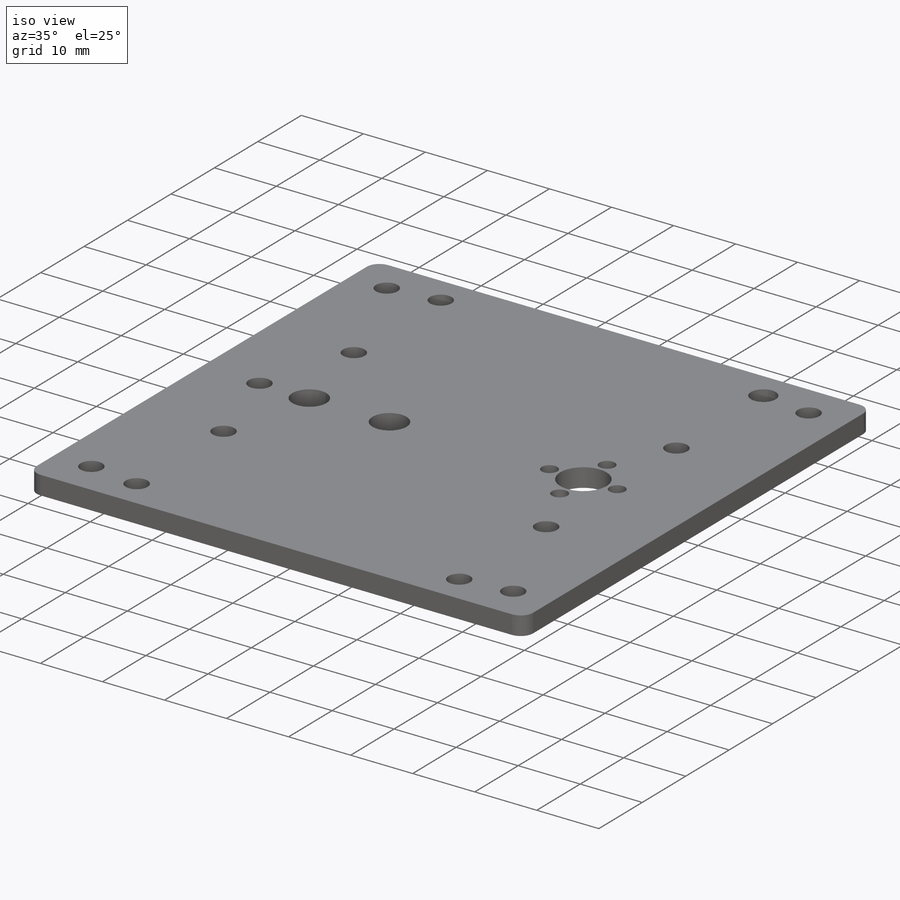
[diagram: iso view]
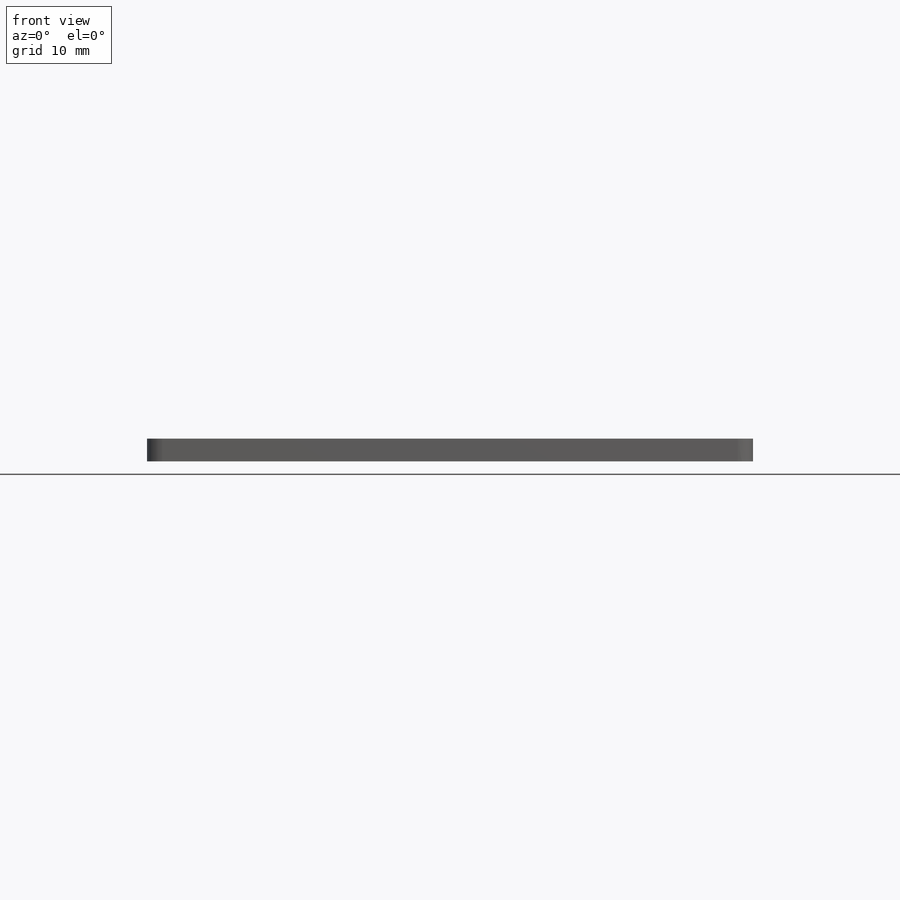
[diagram: front view]
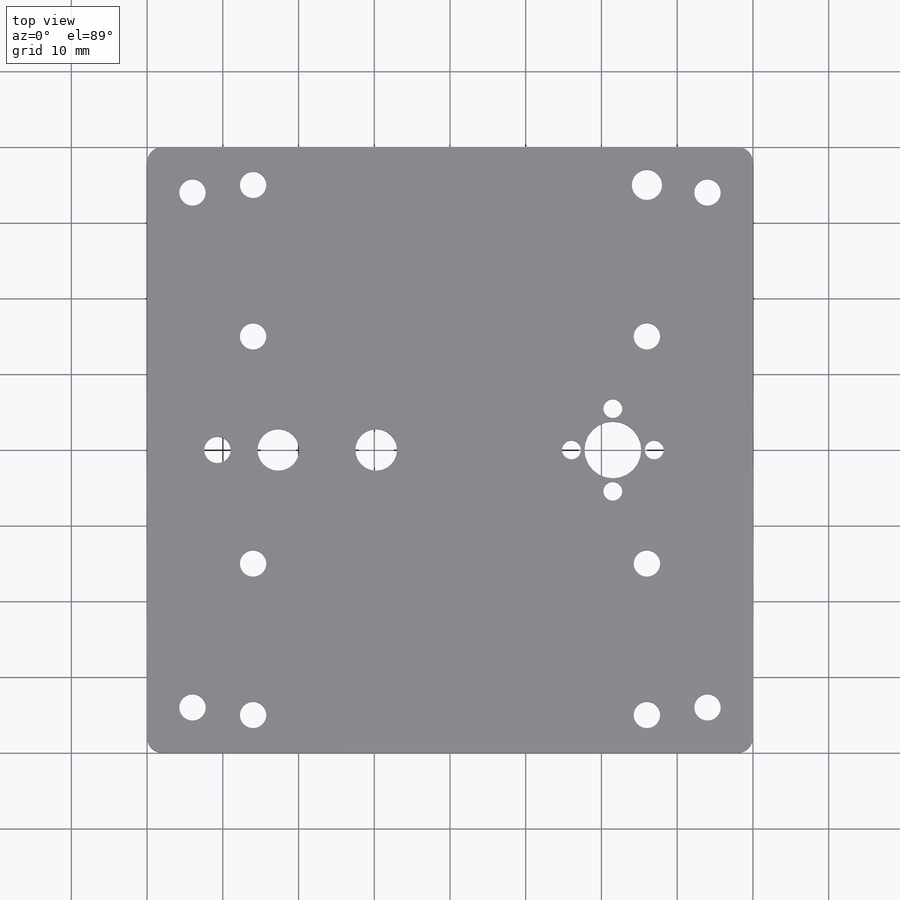
[diagram: top view]
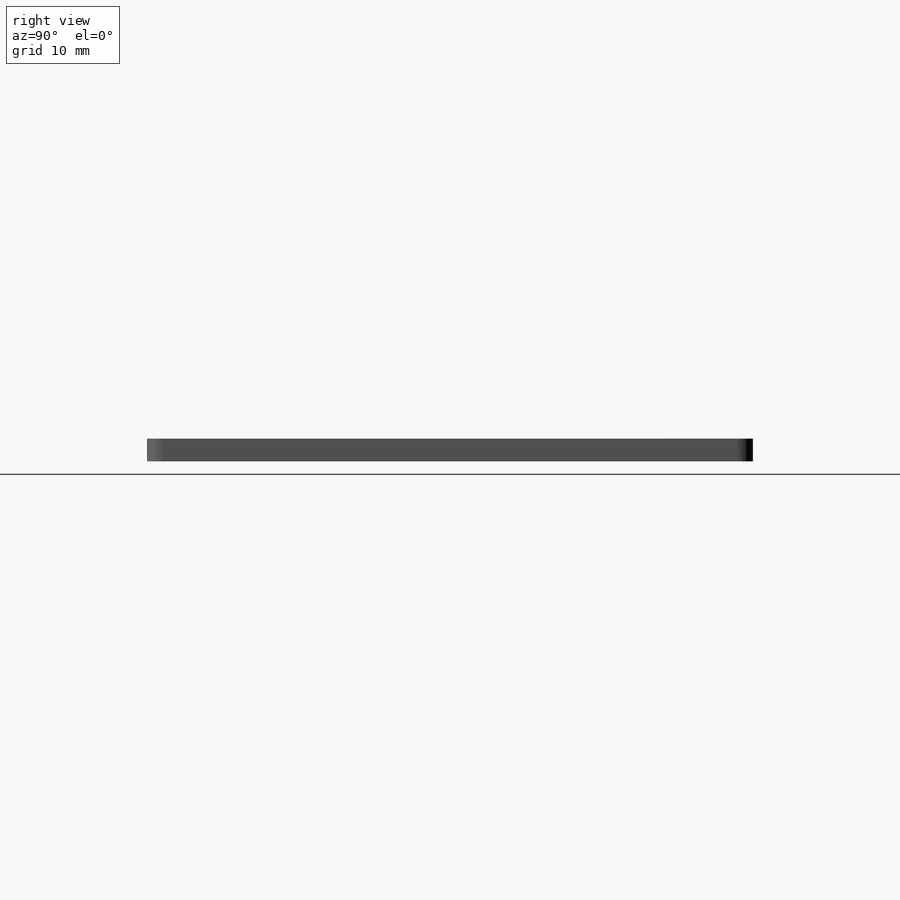
[diagram: right view]
SOLIDWORKS PART (.sldprt)
format: sldprt  version: not decoded by parser v0  size: 311,808 bytes
history: native  units: mm
features: sketch x7, cut_extrude x6, material x1, extrude x1, fillet x1 (+12 scaffold rows collapsed)
feature tree (28):
  scaffold x12  (default folders/planes/origin — collapsed)
  material  "Material <not specified>"
  sketch  "Sketch1"  dims[D1=80.0mm D2=80.0mm]
  extrude  "Boss-Extrude1"  Depth=3mm
  sketch  "Sketch2"  dims[D2=3.5mm D4=5.5mm D1=9.29mm D3=8.04mm]
  cut_extrude  "Cut-Extrude1"  [1 undecoded]
  sketch  "Sketch3"  dims[D2=7.5mm D1=18.5mm]
  cut_extrude  "Cut-Extrude2"  [1 undecoded]
  sketch  "Sketch4"  dims[D1=2.5mm D3=2.5mm D4=2.5mm D5=2.5mm D2=5.46mm D6=5.46mm D7=5.46mm D8=5.46mm]
  cut_extrude  "Cut-Extrude3"  [1 undecoded]
  sketch  "Sketch5"  dims[D2=5.5mm D1=30.25mm]
  cut_extrude  "Cut-Extrude4"  [1 undecoded]
  sketch  "Sketch6"  dims[D3=3.5mm D1=6.0mm D2=6.0mm]
  cut_extrude  "Cut-Extrude5"  [1 undecoded]
  fillet  "Fillet1"  Radius=2mm
  sketch  "Sketch7"  dims[c1.D7=3.5mm c1.D1=3.5mm c1.D9=3.5mm c1.D10=3.5mm c1.D13=3.5mm c1.D17=4.0mm c1.D23=3.5mm c1.D24=3.5mm c2.D1=28.0mm c2.D2=1.0mm c2.D3=60.0mm c2.D4=10.0mm c2.D5=14.0mm c2.D6=5.0mm c3.D2=5.0mm c3.D3=14.0mm c4.D2=5.0mm c4.D4=14.0mm c4.D8=14.0mm c4.D11=25.0mm c4.D12=25.0mm c4.D13=~8.283835mm c4.D14=14.0mm c4.D15=5.0mm c4.D16=5.0mm c4.D17=~8.062258mm c4.D18=14.0mm c4.D19=14.0mm c4.D20=14.0mm c4.D21=25.0mm c4.D22=25.0mm]
  cut_extrude  "Cut-Extrude6"  [1 undecoded]
decode coverage: 9 of 15 modeling features carry decoded parameters
note: ~ marks probable driven/reference dimensions
note: 6 parameter values undecoded
summary: no parameter record found for 6 features
note: suppression state not decoded; provenance and decode notes live in map.json
